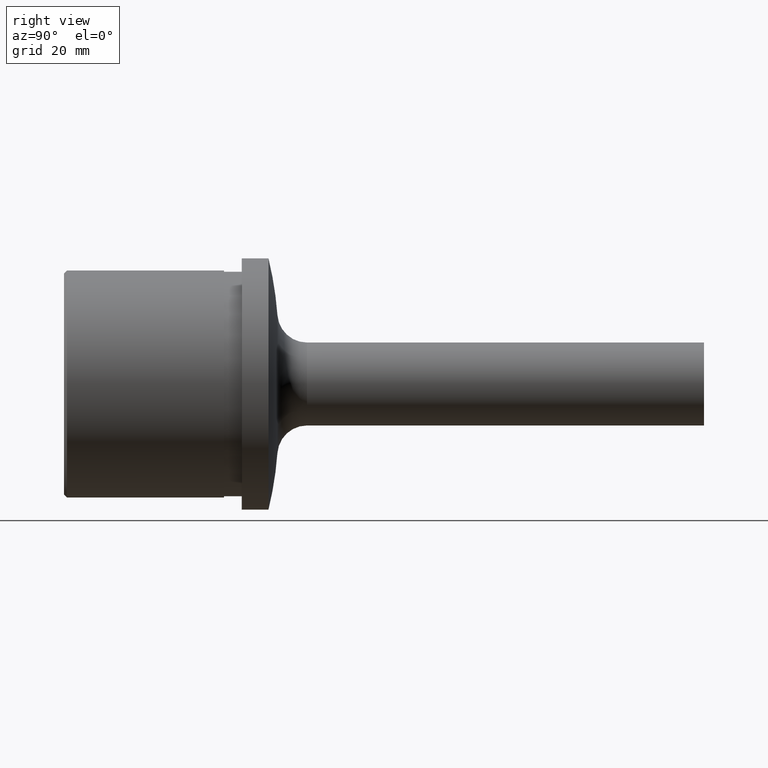
[diagram: clean part render]
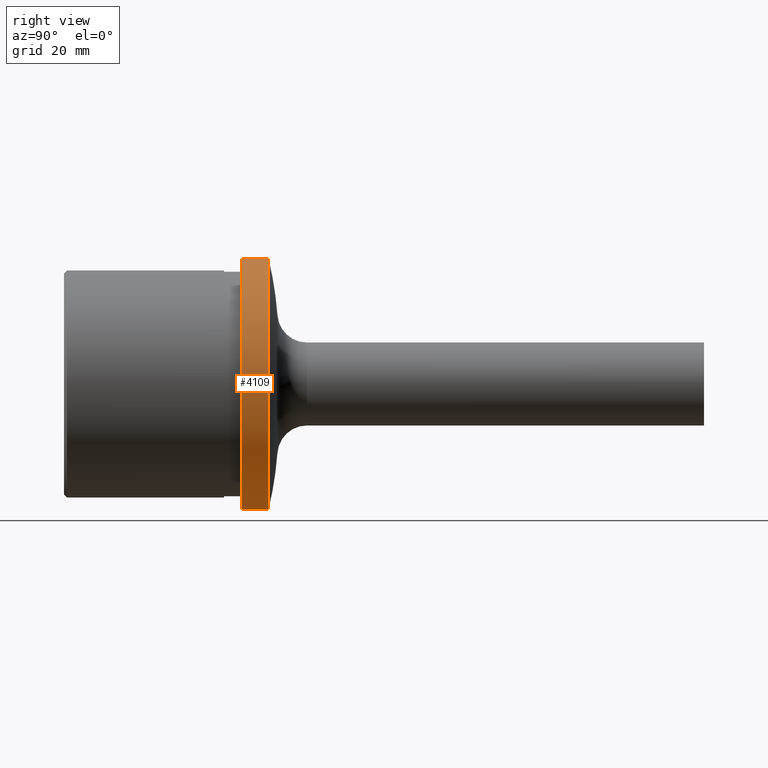
[diagram: same view with one face highlighted and labeled with its STEP entity id]
A machine part, right view. The second image highlights one B-rep face of the part: STEP entity #4109.
In plain terms, the highlighted cylindrical surface (partial cylindrical patch) has radius 21.2 mm, axis along (-0, -1, -0).
Its self-contained STEP definition (entity closure, byte-faithful):
#1678 = VERTEX_POINT ( 'NONE', #1745 ) ;
#1745 = CARTESIAN_POINT ( 'NONE',  ( 0.0000000000000000000, 34.50000000000000000, -21.20000000000000300 ) ) ;
#1747 = CARTESIAN_POINT ( 'NONE',  ( 0.0000000000000000000, 34.50000000000000000, 0.0000000000000000000 ) ) ;
#2559 = CARTESIAN_POINT ( 'NONE',  ( 2.596251214192389200E-015, 34.50000000000000000, 21.20000000000000300 ) ) ;
#2953 = CYLINDRICAL_SURFACE ( 'NONE', #7867, 21.20000000000000300 ) ;
#3475 = DIRECTION ( 'NONE',  ( -0.0000000000000000000, -1.000000000000000000, -0.0000000000000000000 ) ) ;
#3621 = EDGE_CURVE ( 'NONE', #1678, #13468, #5364, .T. ) ;
#3636 = DIRECTION ( 'NONE',  ( -0.0000000000000000000, -1.000000000000000000, -0.0000000000000000000 ) ) ;
#4109 = ADVANCED_FACE ( 'NONE', ( #15160 ), #2953, .T. ) ;
#4155 = VECTOR ( 'NONE', #14761, 1000.000000000000000 ) ;
#4811 = CIRCLE ( 'NONE', #16481, 21.19999999999999900 ) ;
#4943 = CARTESIAN_POINT ( 'NONE',  ( 0.0000000000000000000, 30.00000000000000400, 0.0000000000000000000 ) ) ;
#5364 = LINE ( 'NONE', #19235, #4155 ) ;
#6292 = VERTEX_POINT ( 'NONE', #15279 ) ;
#7867 = AXIS2_PLACEMENT_3D ( 'NONE', #15997, #3636, #15929 ) ;
#8637 = ORIENTED_EDGE ( 'NONE', *, *, #14016, .T. ) ;
#8866 = VECTOR ( 'NONE', #15928, 1000.000000000000000 ) ;
#10051 = ORIENTED_EDGE ( 'NONE', *, *, #16861, .T. ) ;
#10974 = DIRECTION ( 'NONE',  ( 0.0000000000000000000, 0.0000000000000000000, -1.000000000000000000 ) ) ;
#11473 = CARTESIAN_POINT ( 'NONE',  ( 2.596251214192389200E-015, 32.00000000000000000, 21.20000000000000300 ) ) ;
#13468 = VERTEX_POINT ( 'NONE', #16552 ) ;
#13779 = EDGE_LOOP ( 'NONE', ( #8637, #10051, #16486, #18590 ) ) ;
#14016 = EDGE_CURVE ( 'NONE', #1678, #14181, #18938, .T. ) ;
#14181 = VERTEX_POINT ( 'NONE', #2559 ) ;
#14271 = EDGE_CURVE ( 'NONE', #13468, #6292, #4811, .T. ) ;
#14761 = DIRECTION ( 'NONE',  ( -0.0000000000000000000, -1.000000000000000000, -0.0000000000000000000 ) ) ;
#15160 = FACE_OUTER_BOUND ( 'NONE', #13779, .T. ) ;
#15279 = CARTESIAN_POINT ( 'NONE',  ( 2.596251214192388800E-015, 30.00000000000000400, 21.19999999999999900 ) ) ;
#15590 = DIRECTION ( 'NONE',  ( 0.0000000000000000000, 0.0000000000000000000, -1.000000000000000000 ) ) ;
#15928 = DIRECTION ( 'NONE',  ( -0.0000000000000000000, -1.000000000000000000, -0.0000000000000000000 ) ) ;
#15929 = DIRECTION ( 'NONE',  ( 0.0000000000000000000, 0.0000000000000000000, -1.000000000000000000 ) ) ;
#15997 = CARTESIAN_POINT ( 'NONE',  ( 0.0000000000000000000, 32.00000000000000000, 0.0000000000000000000 ) ) ;
#16481 = AXIS2_PLACEMENT_3D ( 'NONE', #4943, #3475, #15590 ) ;
#16486 = ORIENTED_EDGE ( 'NONE', *, *, #14271, .F. ) ;
#16489 = LINE ( 'NONE', #11473, #8866 ) ;
#16552 = CARTESIAN_POINT ( 'NONE',  ( 0.0000000000000000000, 30.00000000000000400, -21.19999999999999900 ) ) ;
#16861 = EDGE_CURVE ( 'NONE', #14181, #6292, #16489, .T. ) ;
#18526 = DIRECTION ( 'NONE',  ( -0.0000000000000000000, -1.000000000000000000, -0.0000000000000000000 ) ) ;
#18549 = AXIS2_PLACEMENT_3D ( 'NONE', #1747, #18526, #10974 ) ;
#18590 = ORIENTED_EDGE ( 'NONE', *, *, #3621, .F. ) ;
#18938 = CIRCLE ( 'NONE', #18549, 21.20000000000000300 ) ;
#19235 = CARTESIAN_POINT ( 'NONE',  ( 0.0000000000000000000, 32.00000000000000000, -21.20000000000000300 ) ) ;